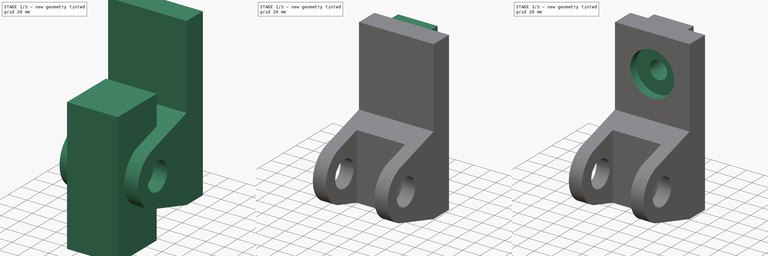
[diagram: build sequence overview — one tinted view per stage of 3, left to right]
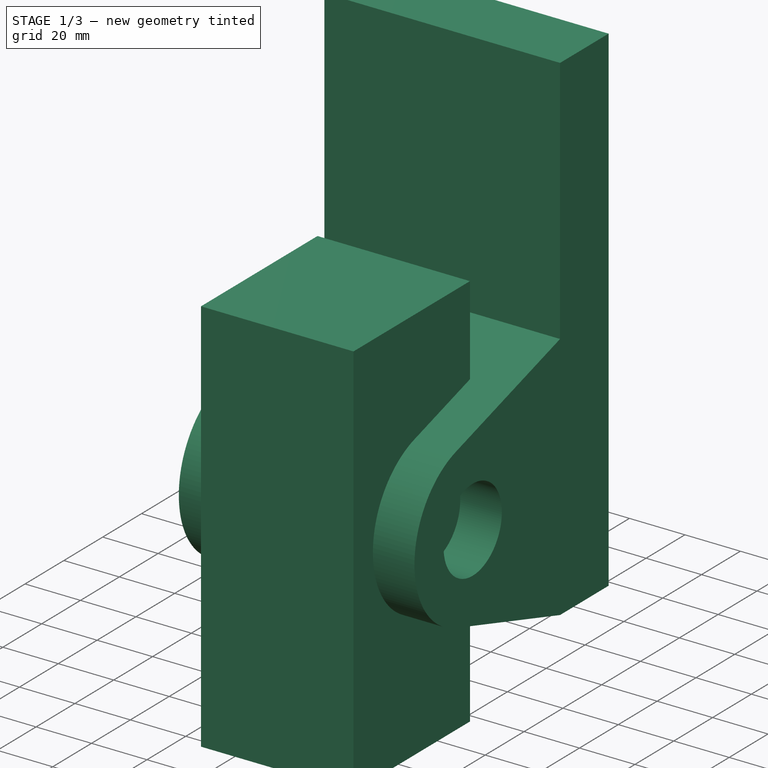
[diagram: stage 1 of 3 — iso view after this stage's code; geometry added in this stage tinted green]
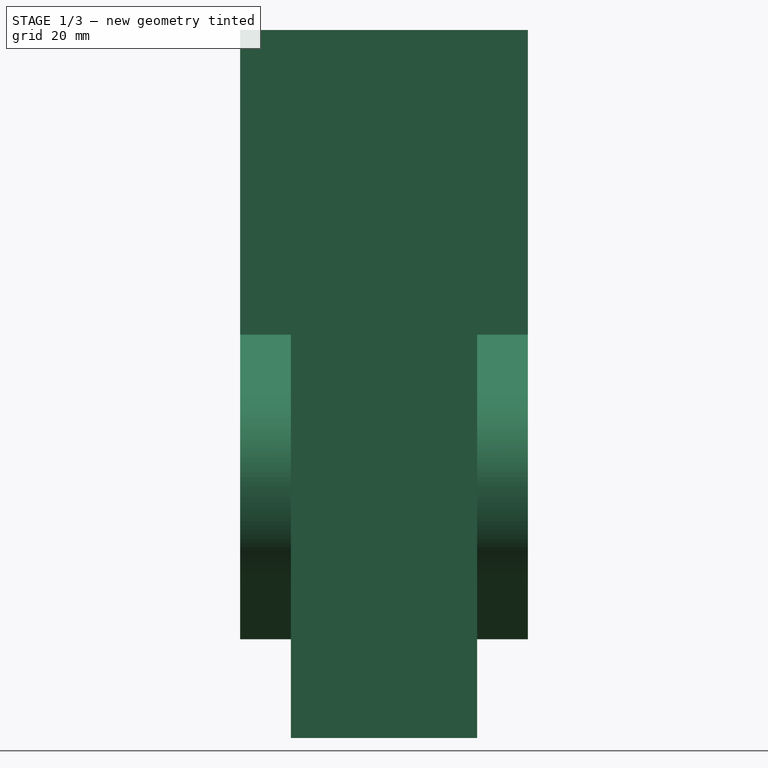
[diagram: stage 1 of 3 — front view after this stage's code; geometry added in this stage tinted green]
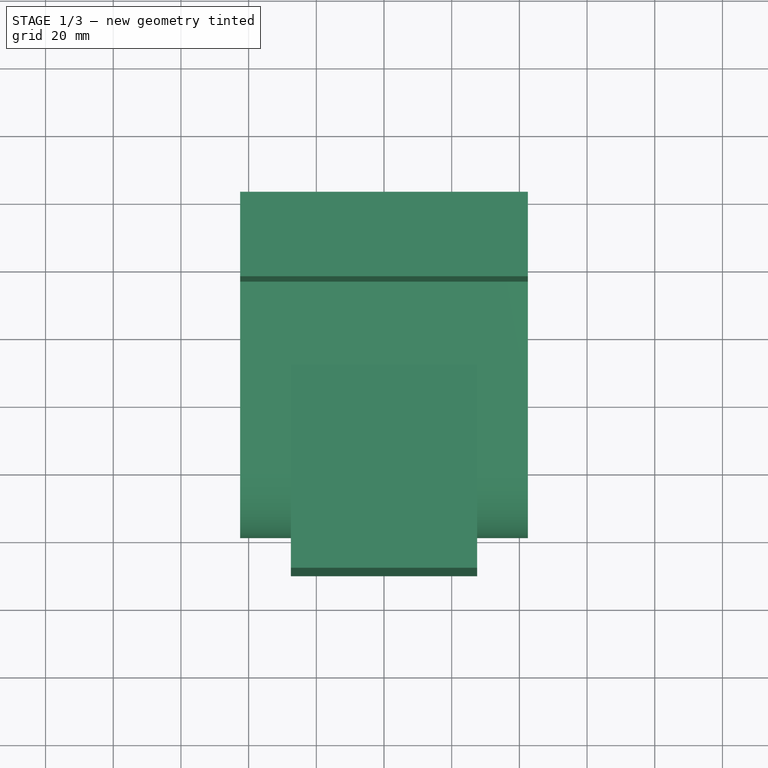
[diagram: stage 1 of 3 — top view after this stage's code; geometry added in this stage tinted green]
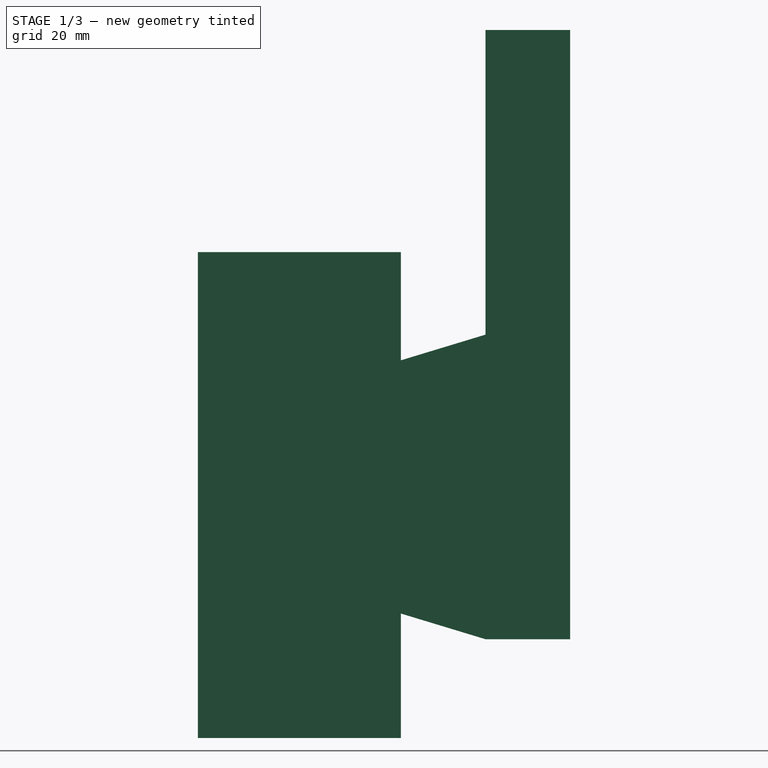
[diagram: stage 1 of 3 — right view after this stage's code; geometry added in this stage tinted green]
FCSTD DOCUMENT  (FreeCAD 0.16R)
Label: Fig 4.9 Final
License: All rights reserved
LicenseURL: http://en.wikipedia.org/wiki/All_rights_reserved
objects: Sketcher::SketchObject×5, PartDesign::Pad×3, PartDesign::Pocket×2, Part::Cut×1
note: 16 computed .brp shape members not serialized (recipe doc carries the construction recipe); baked Part::Feature solids carry a one-line shape summary decoded from their .brp

FEATURE [Sketcher::SketchObject] Sketch
  Placement = pos=(0,0,0) rot=(0.57735,0.57735,0.57735;2.0944rad)
  sketch-geometry (8):
    g0: LineSegment StartX=0 StartY=-45 StartZ=0 EndX=0 EndY=135 EndZ=0
    g1: LineSegment StartX=0 StartY=135 StartZ=0 EndX=-25 EndY=135 EndZ=0
    g2: LineSegment StartX=-25 StartY=135 StartZ=0 EndX=-25 EndY=45 EndZ=0
    g3: Circle CenterX=-70 CenterY=0 CenterZ=0 NormalX=0 NormalY=0 NormalZ=1 Radius=15
    g4: ArcOfCircle CenterX=-70 CenterY=0 CenterZ=0 NormalX=0 NormalY=0 NormalZ=1 Radius=30 StartAngle=1.86531 EndAngle=4.41787
    g5: LineSegment StartX=-25 StartY=45 StartZ=0 EndX=-78.7083 EndY=28.7083 EndZ=0
    g6: LineSegment StartX=-78.7083 StartY=-28.7083 StartZ=0 EndX=-25 EndY=-45 EndZ=0
    g7: LineSegment StartX=0 StartY=-45 StartZ=0 EndX=-25 EndY=-45 EndZ=0
  constraints (24):
    c: Vertical(g0)
    c: Coincident(g0,g1)
    c: Horizontal(g1)
    c: Coincident(g1,g2)
    c: Vertical(g2)
    c: DistanceY(g0,g0) = 180
    c: DistanceX(g1,g1) = 25
    c: DistanceY(g2,g2) = 90
    c: DistanceY(g0,g-1) = 45
    c: PointOnObject(g3,g-1)
    c: Radius(g3) = 15
    c: Radius(g4) = 30
    c: Coincident(g5,g2)
    c: Coincident(g5,g4)
    c: Coincident(g6,g4)
    c: Tangent(g4,g5)
    c: Tangent(g4,g6)
    c: PointOnObject(g0,g-2)
    c: Coincident(g7,g0)
    c: Horizontal(g7)
    c: DistanceX(g7,g7) = 25
    c: Coincident(g7,g6)
    c: DistanceX(g3,g-1) = 70
    c: Coincident(g4,g3)
FEATURE [PartDesign::Pad] Pad
  Length = 85
  Length2 = 100
  Midplane = true
  Placement = pos=(0,0,0) rot=(0.57735,0.57735,0.57735;2.0944rad)
  Sketch = -> Sketch
  Type = 0
FEATURE [Sketcher::SketchObject] Sketch001
  Placement = pos=(0,-50,0) rot=(0.57735,0.57735,-0.57735;2.0944rad)
  sketch-geometry (4):
    g0: LineSegment StartX=-69.3956 StartY=27.5 StartZ=0 EndX=74.1761 EndY=27.5 EndZ=0
    g1: LineSegment StartX=74.1761 StartY=27.5 StartZ=0 EndX=74.1761 EndY=-27.5 EndZ=0
    g2: LineSegment StartX=74.1761 StartY=-27.5 StartZ=0 EndX=-69.3956 EndY=-27.5 EndZ=0
    g3: LineSegment StartX=-69.3956 StartY=-27.5 StartZ=0 EndX=-69.3956 EndY=27.5 EndZ=0
  constraints (10):
    c: Coincident(g0,g1)
    c: Coincident(g1,g2)
    c: Coincident(g2,g3)
    c: Coincident(g3,g0)
    c: Horizontal(g0)
    c: Horizontal(g2)
    c: Vertical(g1)
    c: Vertical(g3)
    c: Symmetric(g1,g0,g-1)
    c: DistanceY(g3,g3) = 55
FEATURE [PartDesign::Pad] Pad001
  Length = 60
  Length2 = 100
  Placement = pos=(0,-50,0) rot=(0.57735,0.57735,-0.57735;2.0944rad)
  Sketch = -> Sketch001
  Type = 0
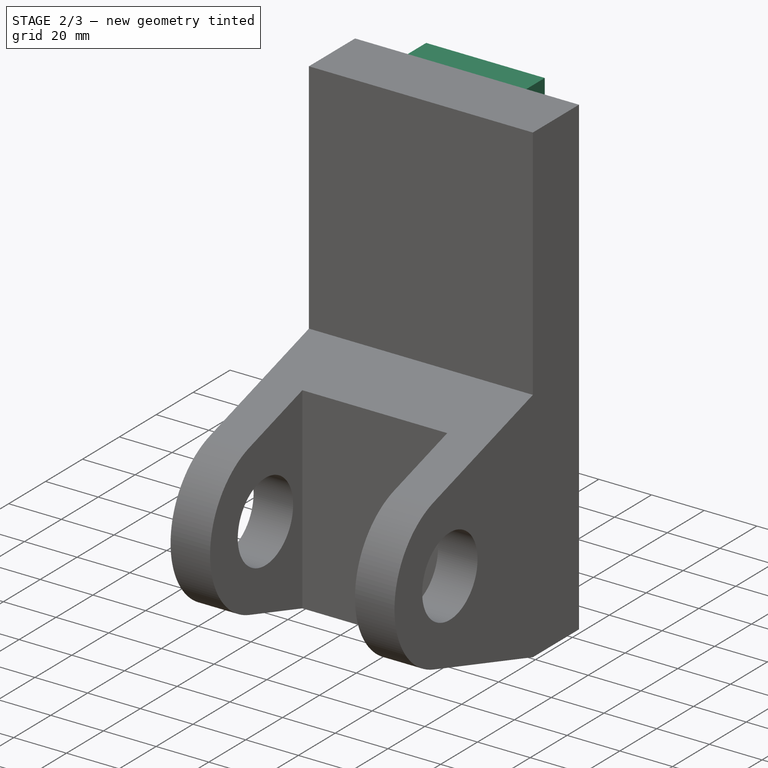
[diagram: stage 2 of 3 — iso view after this stage's code; geometry added in this stage tinted green]
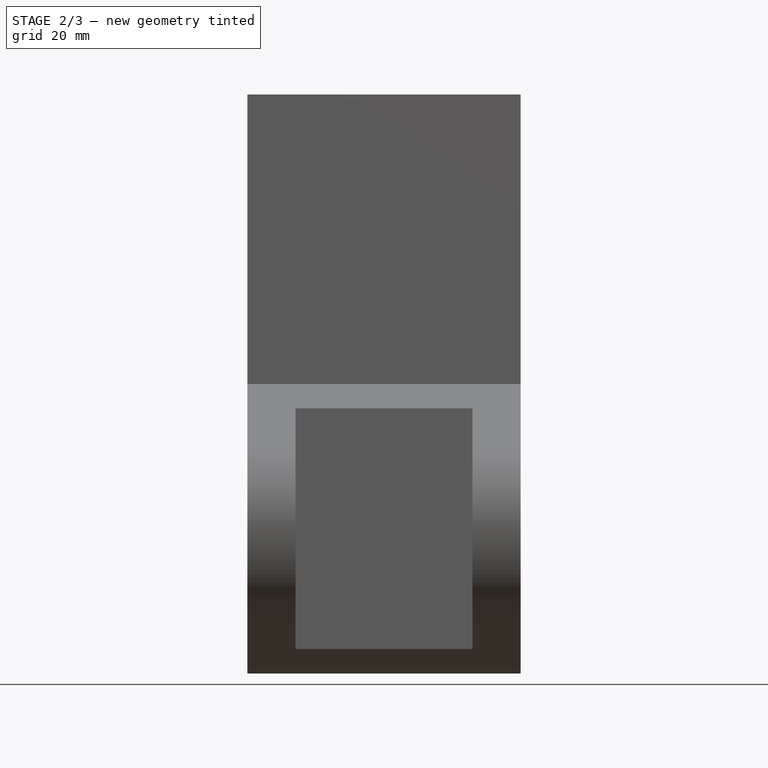
[diagram: stage 2 of 3 — front view after this stage's code; geometry added in this stage tinted green]
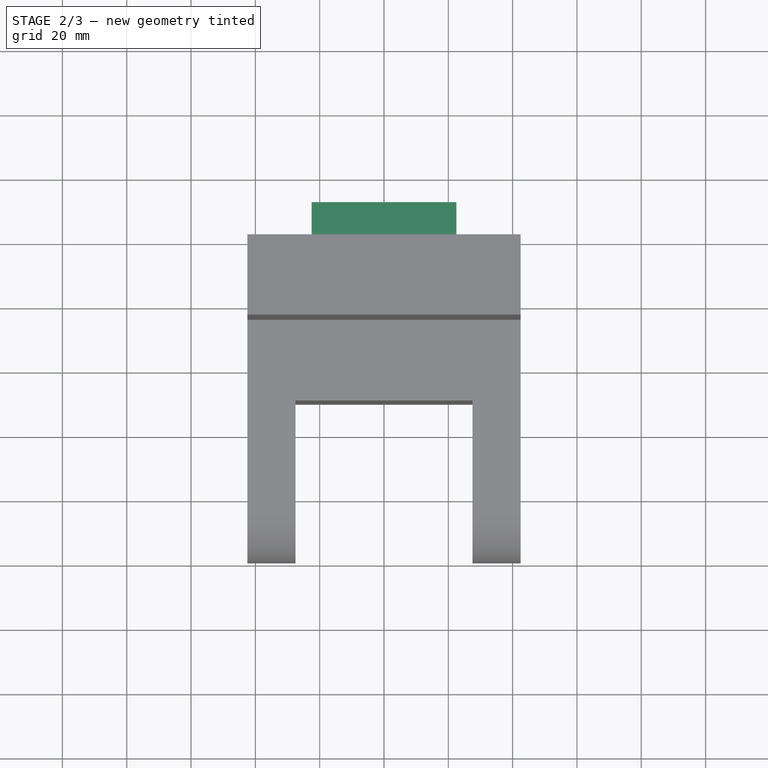
[diagram: stage 2 of 3 — top view after this stage's code; geometry added in this stage tinted green]
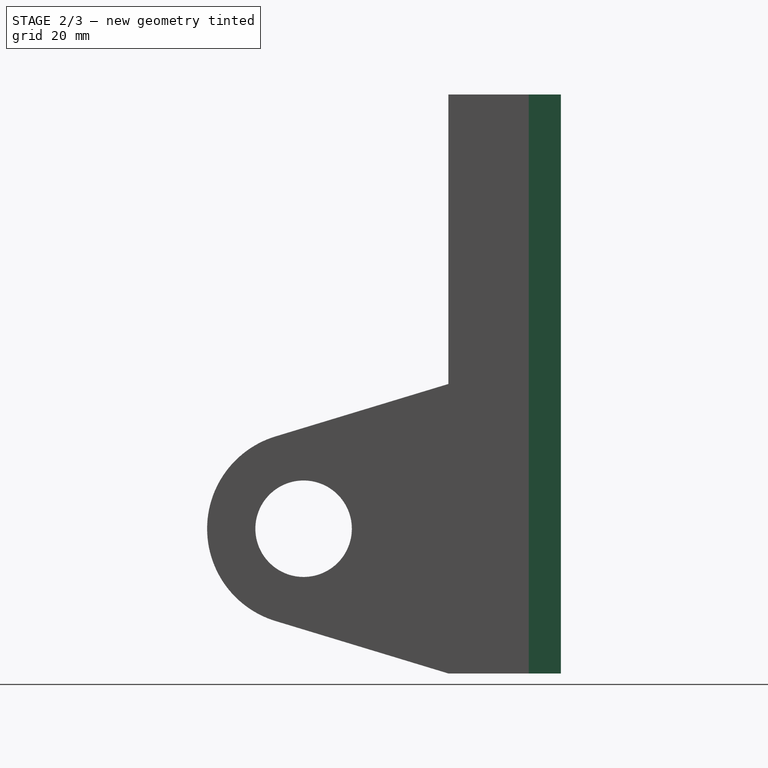
[diagram: stage 2 of 3 — right view after this stage's code; geometry added in this stage tinted green]
FEATURE [Part::Cut] Cut
  Base = -> Pad
  Tool = -> Pad001
FEATURE [Sketcher::SketchObject] Sketch002
  ExternalGeometry = -> [Cut]
  Placement = pos=(0,0,0) rot=(0,0.707107,0.707107;3.14159rad)
  Support = -> Cut [Face1]
  sketch-geometry (4):
    g0: LineSegment StartX=-22.5 StartY=135 StartZ=0 EndX=22.5 EndY=135 EndZ=0
    g1: LineSegment StartX=22.5 StartY=135 StartZ=0 EndX=22.5 EndY=-45 EndZ=0
    g2: LineSegment StartX=22.5 StartY=-45 StartZ=0 EndX=-22.5 EndY=-45 EndZ=0
    g3: LineSegment StartX=-22.5 StartY=-45 StartZ=0 EndX=-22.5 EndY=135 EndZ=0
  constraints (12):
    c: Coincident(g0,g1)
    c: Coincident(g1,g2)
    c: Coincident(g2,g3)
    c: Coincident(g3,g0)
    c: Horizontal(g0)
    c: Horizontal(g2)
    c: Vertical(g1)
    c: Vertical(g3)
    c: Symmetric(g1,g2,g-2)
    c: DistanceX(g0,g0) = 45
    c: PointOnObject(g0,g-3)
    c: PointOnObject(g1,g-4)
FEATURE [PartDesign::Pad] Pad002
  Length = 10
  Length2 = 100
  Sketch = -> Sketch002
  Type = 0
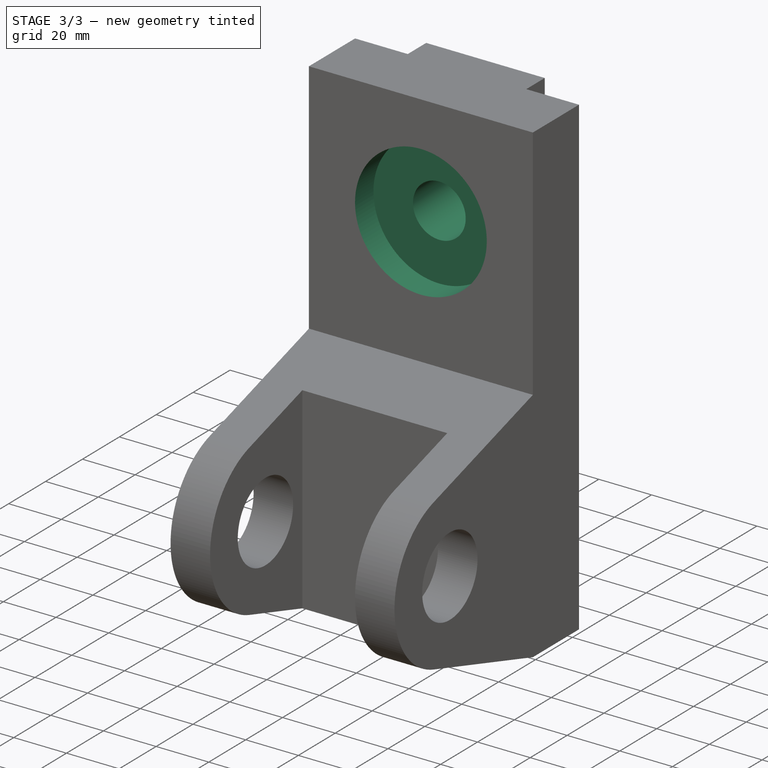
[diagram: stage 3 of 3 — iso view after this stage's code; geometry added in this stage tinted green]
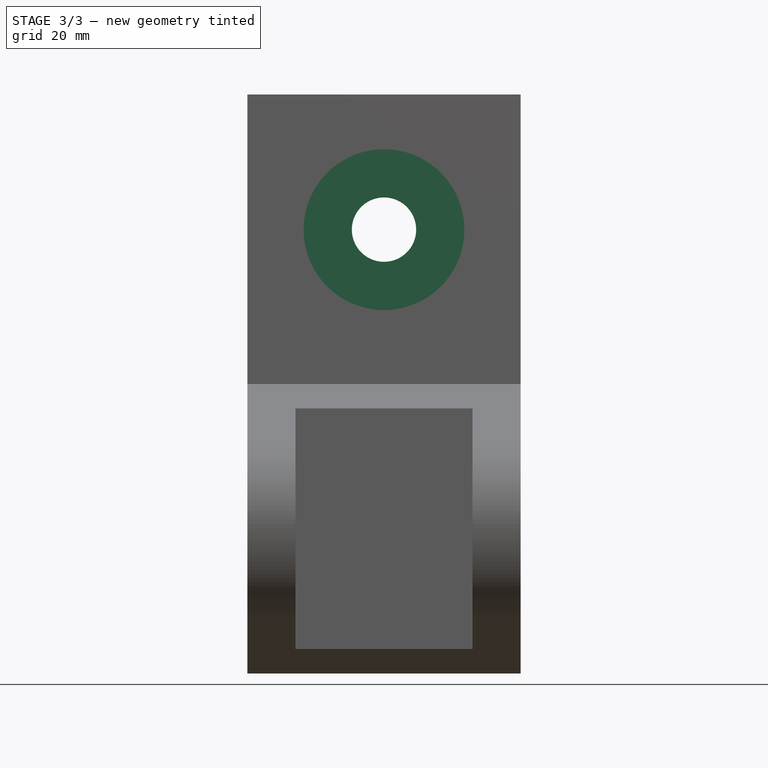
[diagram: stage 3 of 3 — front view after this stage's code; geometry added in this stage tinted green]
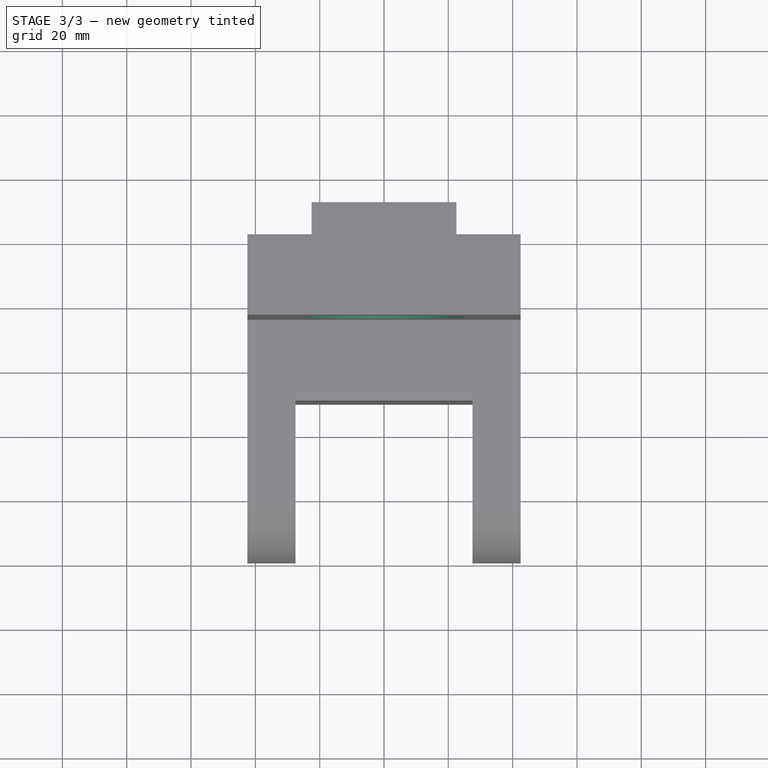
[diagram: stage 3 of 3 — top view after this stage's code; geometry added in this stage tinted green]
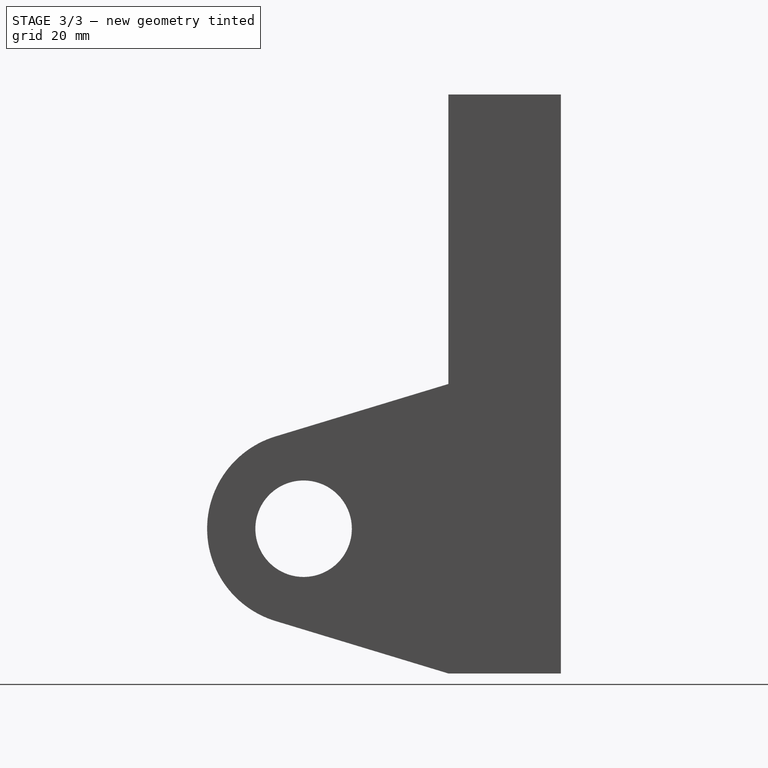
[diagram: stage 3 of 3 — right view after this stage's code; geometry added in this stage tinted green]
FEATURE [Sketcher::SketchObject] Sketch003
  ExternalGeometry = -> [Pad002]
  Placement = pos=(0,-25,0) rot=(1,0,0;1.5708rad)
  Support = -> Pad002 [Face7]
  sketch-geometry (1):
    g0: Circle CenterX=0 CenterY=93 CenterZ=0 NormalX=0 NormalY=0 NormalZ=1 Radius=25
  constraints (3):
    c: PointOnObject(g0,g-2)
    c: DistanceY(g0,g-3) = 42
    c: Radius(g0) = 25
FEATURE [PartDesign::Pocket] Pocket
  Length = 10
  Sketch = -> Sketch003
  Type = 0
FEATURE [Sketcher::SketchObject] Sketch004
  ExternalGeometry = -> [Pocket]
  Placement = pos=(0,-15,0) rot=(1,0,0;1.5708rad)
  Support = -> Pocket [Face21]
  sketch-geometry (1):
    g0: Circle CenterX=0 CenterY=93 CenterZ=0 NormalX=0 NormalY=0 NormalZ=1 Radius=10
  constraints (2):
    c: Coincident(g0,g-3)
    c: Radius(g0) = 10
FEATURE [PartDesign::Pocket] Pocket001
  Length = 5
  Sketch = -> Sketch004
  Type = 1
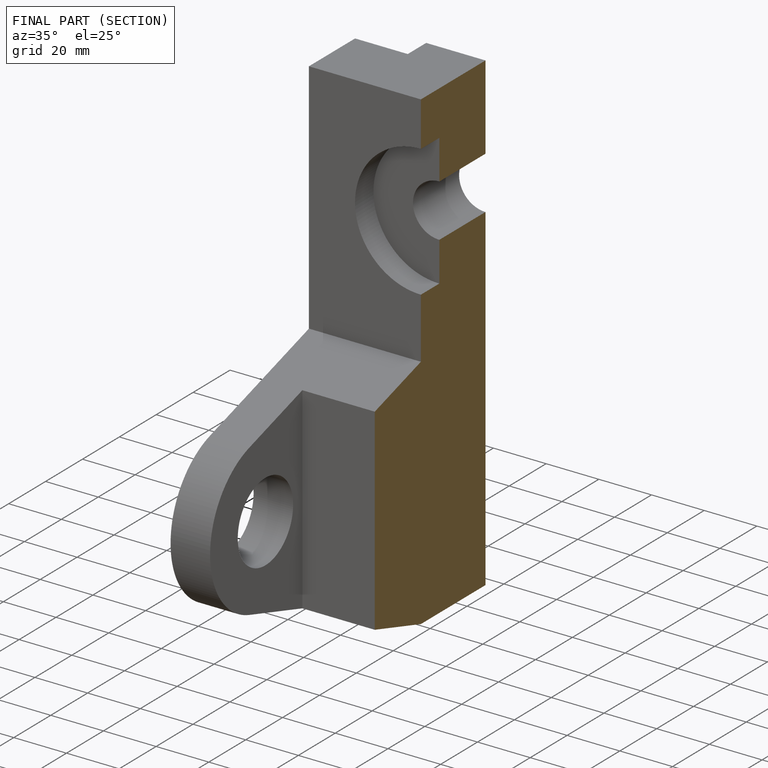
[diagram: finished part — half-section view (interior)]
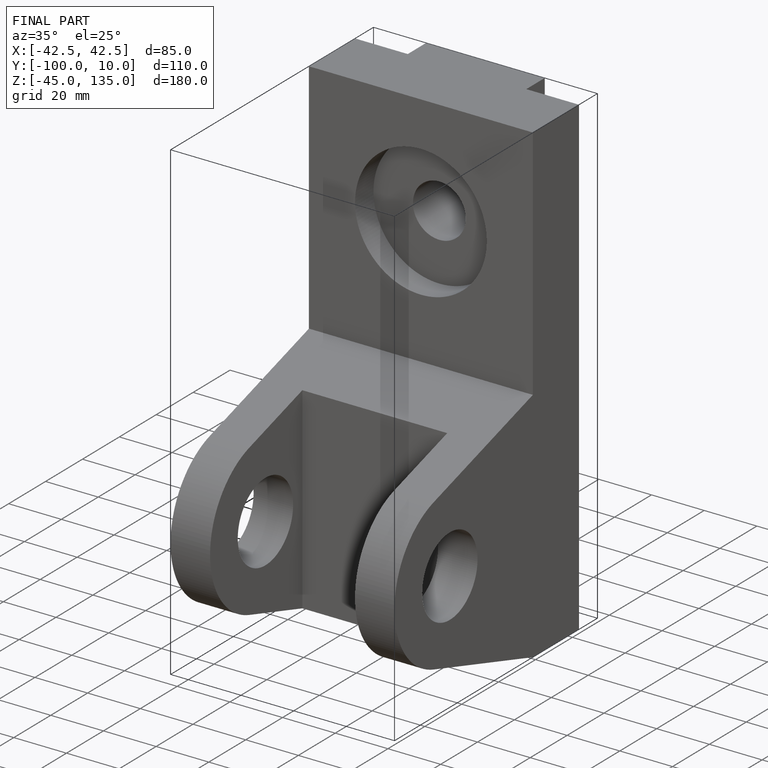
[diagram: finished part — iso view with bounding-box wireframe]
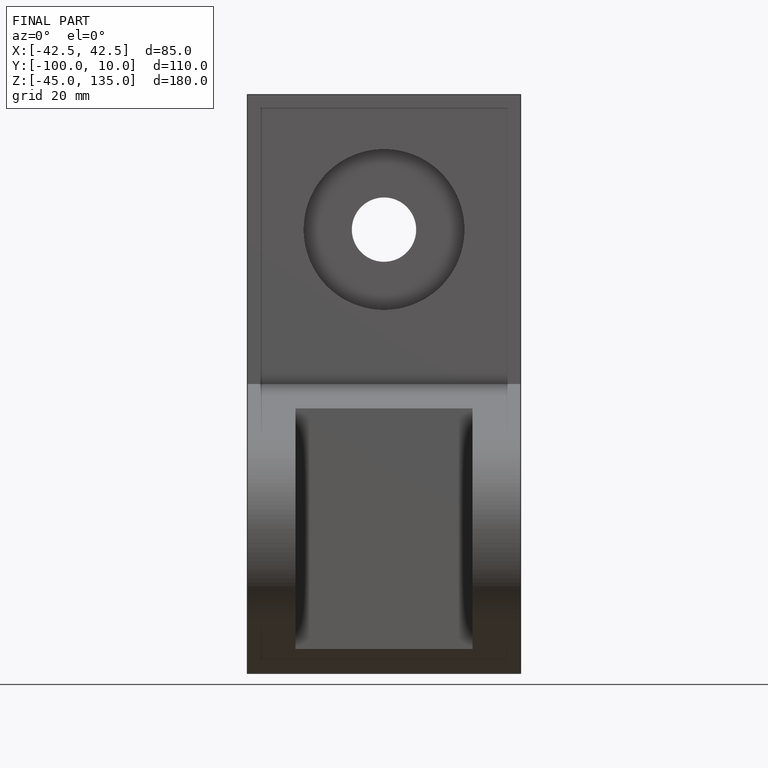
[diagram: finished part — front view with bounding-box wireframe]
